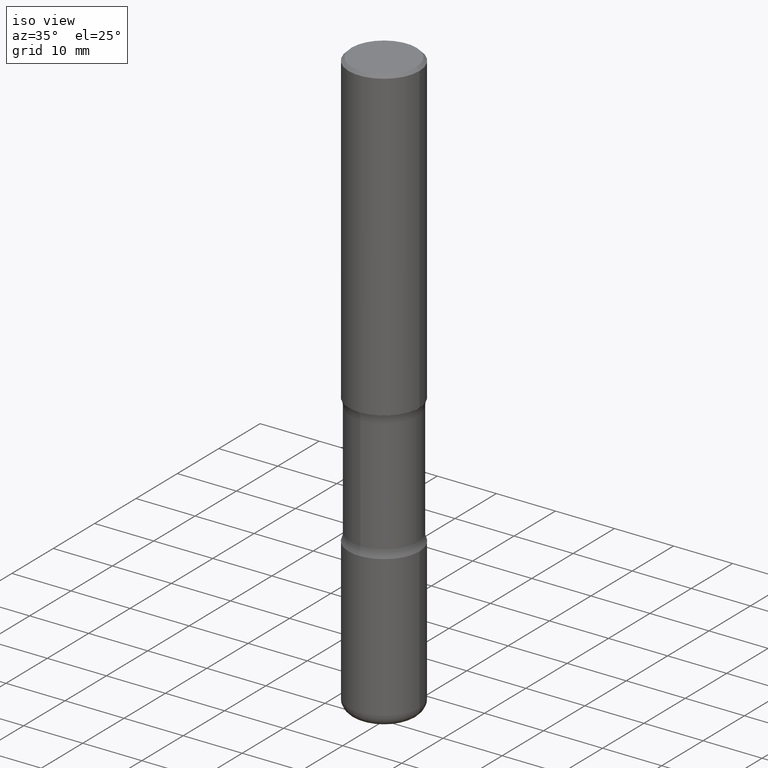
[diagram: clean part render]
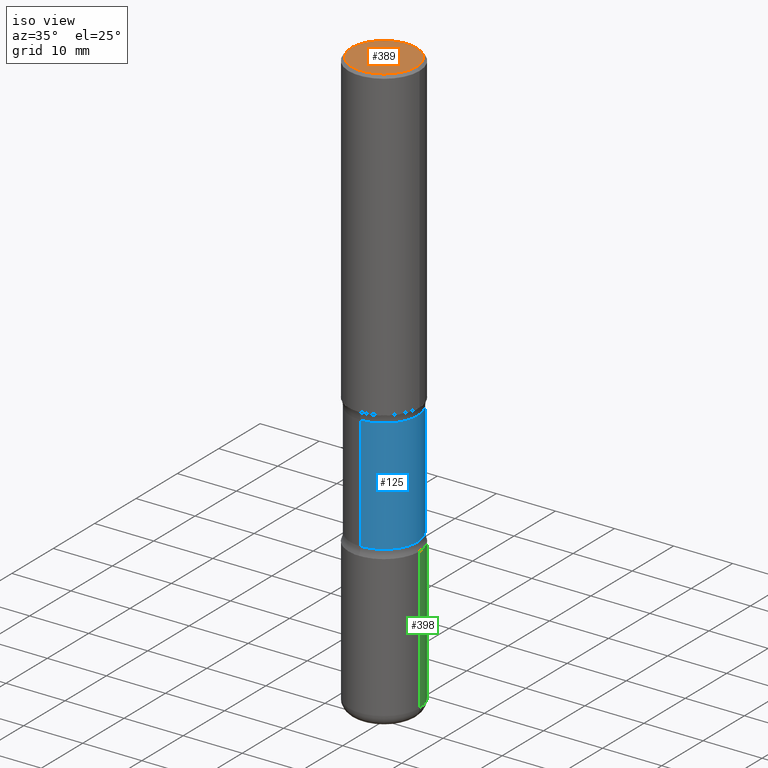
[diagram: same view with three faces highlighted in distinct colors, each labeled with its STEP entity id]
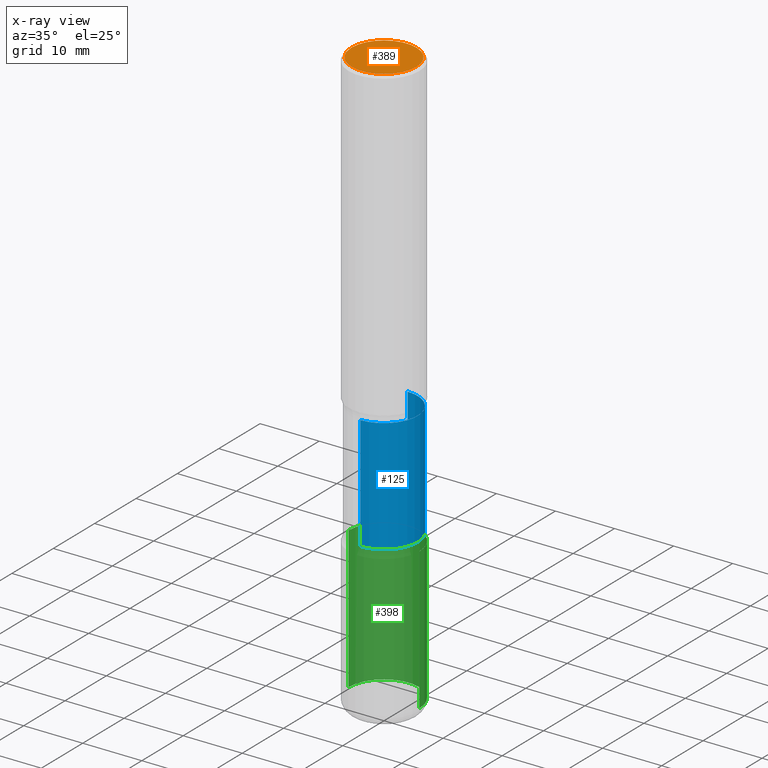
[diagram: x-ray of the same camera — body ghosted, the three highlighted faces saturated]
A machine part, iso view with three faces highlighted in distinct colors.
The next image is the same camera in x-ray (body ghosted, the three faces saturated) — at least one of them is partly hidden behind the body in this view.
Their STEP definitions:

[orange] entity #389 — the highlighted planar face has unit normal (0, -0, -1).
#5 = CIRCLE ( 'NONE', #428, 0.2161999999999998368 ) ;
#17 = CARTESIAN_POINT ( 'NONE',  ( -1.043851414335219820E-46, 1.490343170380447200E-32, 4.268512490100411279E-18 ) ) ;
#20 = EDGE_CURVE ( 'NONE', #200, #287, #5, .T. ) ;
#32 = DIRECTION ( 'NONE',  ( 2.438088387897960049E-29, -3.491481338843145188E-15, -1.000000000000000000 ) ) ;
#39 = DIRECTION ( 'NONE',  ( 1.000000000000000000, -6.982962677686266711E-15, 4.876217060660159599E-29 ) ) ;
#67 = ORIENTED_EDGE ( 'NONE', *, *, #20, .T. ) ;
#78 = CARTESIAN_POINT ( 'NONE',  ( -1.043851414335219820E-46, 1.490343170380447200E-32, 4.268512490100411279E-18 ) ) ;
#98 = CARTESIAN_POINT ( 'NONE',  ( 0.2161999999999998368, -1.586759460484351002E-15, 4.268512490111238857E-18 ) ) ;
#133 = EDGE_LOOP ( 'NONE', ( #508, #67 ) ) ;
#135 = DIRECTION ( 'NONE',  ( -2.445468806185136597E-29, 3.491481338843145583E-15, 1.000000000000000000 ) ) ;
#146 = CIRCLE ( 'NONE', #452, 0.2161999999999998368 ) ;
#151 = CARTESIAN_POINT ( 'NONE',  ( 1.509716530915769534E-15, 0.2161999999999998368, -7.527240092128373149E-16 ) ) ;
#200 = VERTEX_POINT ( 'NONE', #98 ) ;
#216 = AXIS2_PLACEMENT_3D ( 'NONE', #151, #32, #273 ) ;
#227 = EDGE_CURVE ( 'NONE', #287, #200, #146, .T. ) ;
#273 = DIRECTION ( 'NONE',  ( -1.000000000000000000, 6.982962677686265922E-15, -4.876176775795935793E-29 ) ) ;
#287 = VERTEX_POINT ( 'NONE', #409 ) ;
#297 = DIRECTION ( 'NONE',  ( -2.445468806185136597E-29, 3.491481338843145583E-15, 1.000000000000000000 ) ) ;
#356 = PLANE ( 'NONE',  #216 ) ;
#389 = ADVANCED_FACE ( 'NONE', ( #489 ), #356, .F. ) ;
#409 = CARTESIAN_POINT ( 'NONE',  ( -0.2161999999999998368, 1.544631344304201183E-15, 4.268512490089730842E-18 ) ) ;
#428 = AXIS2_PLACEMENT_3D ( 'NONE', #78, #297, #39 ) ;
#452 = AXIS2_PLACEMENT_3D ( 'NONE', #17, #135, #467 ) ;
#467 = DIRECTION ( 'NONE',  ( 1.000000000000000000, -6.982962677686266711E-15, 4.876217060660159599E-29 ) ) ;
#489 = FACE_OUTER_BOUND ( 'NONE', #133, .T. ) ;
#508 = ORIENTED_EDGE ( 'NONE', *, *, #227, .T. ) ;

[blue] entity #125 — the highlighted cylindrical surface (partial cylindrical patch) has radius 5.6998 mm, axis along (0, -0, -1).
#34 = VERTEX_POINT ( 'NONE', #520 ) ;
#45 = EDGE_CURVE ( 'NONE', #462, #73, #560, .T. ) ;
#46 = FACE_OUTER_BOUND ( 'NONE', #215, .T. ) ;
#70 = ORIENTED_EDGE ( 'NONE', *, *, #83, .T. ) ;
#73 = VERTEX_POINT ( 'NONE', #204 ) ;
#75 = AXIS2_PLACEMENT_3D ( 'NONE', #457, #460, #118 ) ;
#83 = EDGE_CURVE ( 'NONE', #462, #34, #506, .T. ) ;
#103 = CARTESIAN_POINT ( 'NONE',  ( -1.579972688886713168E-15, -0.2244000000000099804, -2.860383398826404466 ) ) ;
#115 = DIRECTION ( 'NONE',  ( 6.982962677686265922E-15, 1.000000000000000000, -2.434802133390609421E-15 ) ) ;
#118 = DIRECTION ( 'NONE',  ( 6.982962677686265922E-15, 1.000000000000000000, -3.652203200085913934E-15 ) ) ;
#125 = ADVANCED_FACE ( 'NONE', ( #46 ), #248, .T. ) ;
#126 = CARTESIAN_POINT ( 'NONE',  ( 1.566976824872894642E-15, 0.2243999999999863049, -3.937000000000000721 ) ) ;
#136 = VECTOR ( 'NONE', #513, 39.37007874015748143 ) ;
#158 = VECTOR ( 'NONE', #419, 39.37007874015748143 ) ;
#164 = DIRECTION ( 'NONE',  ( 6.982962677686265922E-15, 1.000000000000000000, -2.434802133390609815E-15 ) ) ;
#204 = CARTESIAN_POINT ( 'NONE',  ( 1.566976824872867821E-15, 0.2243999999999899686, -2.860383398826405799 ) ) ;
#215 = EDGE_LOOP ( 'NONE', ( #70, #278, #296, #320 ) ) ;
#241 = AXIS2_PLACEMENT_3D ( 'NONE', #456, #415, #115 ) ;
#248 = CYLINDRICAL_SURFACE ( 'NONE', #436, 0.2243999999999999329 ) ;
#278 = ORIENTED_EDGE ( 'NONE', *, *, #539, .T. ) ;
#296 = ORIENTED_EDGE ( 'NONE', *, *, #484, .F. ) ;
#320 = ORIENTED_EDGE ( 'NONE', *, *, #45, .F. ) ;
#336 = LINE ( 'NONE', #559, #158 ) ;
#374 = DIRECTION ( 'NONE',  ( 2.525985086076564115E-29, -3.376177443336566513E-15, -1.000000000000000000 ) ) ;
#384 = VERTEX_POINT ( 'NONE', #103 ) ;
#415 = DIRECTION ( 'NONE',  ( 2.525985086076564115E-29, -3.376177443336566513E-15, -1.000000000000000000 ) ) ;
#416 = CARTESIAN_POINT ( 'NONE',  ( 9.710227154047748282E-29, -1.362793696358492956E-14, -3.937000000000000277 ) ) ;
#419 = DIRECTION ( 'NONE',  ( 2.525985086076564115E-29, -3.376177443336566513E-15, -1.000000000000000000 ) ) ;
#436 = AXIS2_PLACEMENT_3D ( 'NONE', #416, #374, #164 ) ;
#456 = CARTESIAN_POINT ( 'NONE',  ( 6.990709676060807691E-29, -9.993088279580958225E-15, -2.860383398826405354 ) ) ;
#457 = CARTESIAN_POINT ( 'NONE',  ( 5.070539682259229331E-29, -7.426630284172150130E-15, -2.100216601173595432 ) ) ;
#460 = DIRECTION ( 'NONE',  ( 2.525985086076564115E-29, -3.376177443336566513E-15, -1.000000000000000000 ) ) ;
#462 = VERTEX_POINT ( 'NONE', #542 ) ;
#484 = EDGE_CURVE ( 'NONE', #73, #384, #557, .T. ) ;
#506 = CIRCLE ( 'NONE', #75, 0.2243999999999999606 ) ;
#513 = DIRECTION ( 'NONE',  ( 2.525985086076564115E-29, -3.376177443336566513E-15, -1.000000000000000000 ) ) ;
#520 = CARTESIAN_POINT ( 'NONE',  ( -1.579972688886734072E-15, -0.2244000000000073713, -2.100216601173594544 ) ) ;
#539 = EDGE_CURVE ( 'NONE', #34, #384, #336, .T. ) ;
#542 = CARTESIAN_POINT ( 'NONE',  ( 1.566976824872848494E-15, 0.2243999999999925499, -2.100216601173596320 ) ) ;
#557 = CIRCLE ( 'NONE', #241, 0.2243999999999999606 ) ;
#559 = CARTESIAN_POINT ( 'NONE',  ( -1.539495750699834052E-15, -0.2244000000000135608, -3.936999999999999389 ) ) ;
#560 = LINE ( 'NONE', #126, #136 ) ;

[green] entity #398 — the highlighted cylindrical surface (partial cylindrical patch) has radius 5.9995 mm, axis along (-0, 0, 1).
#8 = CARTESIAN_POINT ( 'NONE',  ( 0.2362000000000003264, -1.512055823412800345E-14, -3.858299999999998509 ) ) ;
#27 = ORIENTED_EDGE ( 'NONE', *, *, #220, .T. ) ;
#49 = VECTOR ( 'NONE', #171, 39.37007874015748143 ) ;
#57 = CIRCLE ( 'NONE', #168, 0.2362000000000002153 ) ;
#66 = VERTEX_POINT ( 'NONE', #130 ) ;
#80 = CARTESIAN_POINT ( 'NONE',  ( -0.2362000000000003264, -1.179288050779314737E-14, -3.858299999999998509 ) ) ;
#86 = DIRECTION ( 'NONE',  ( -2.445468806185136597E-29, 3.491481338843145583E-15, 1.000000000000000000 ) ) ;
#95 = EDGE_LOOP ( 'NONE', ( #491, #27, #329, #410 ) ) ;
#104 = CARTESIAN_POINT ( 'NONE',  ( 0.000000000000000000, 0.000000000000000000, 0.000000000000000000 ) ) ;
#114 = VERTEX_POINT ( 'NONE', #80 ) ;
#130 = CARTESIAN_POINT ( 'NONE',  ( -0.2362000000000001321, -1.014333014925670672E-14, -2.913400000000000212 ) ) ;
#147 = AXIS2_PLACEMENT_3D ( 'NONE', #104, #319, #442 ) ;
#160 = DIRECTION ( 'NONE',  ( 1.000000000000000000, -6.982962677686266711E-15, 0.000000000000000000 ) ) ;
#168 = AXIS2_PLACEMENT_3D ( 'NONE', #209, #86, #160 ) ;
#171 = DIRECTION ( 'NONE',  ( -2.445468806185136877E-29, 3.491481338843145188E-15, 1.000000000000000000 ) ) ;
#193 = DIRECTION ( 'NONE',  ( -2.445468806185136597E-29, 3.491481338843145583E-15, 1.000000000000000000 ) ) ;
#209 = CARTESIAN_POINT ( 'NONE',  ( 9.435352294904109900E-29, -1.347118244965850534E-14, -3.858299999999998509 ) ) ;
#220 = EDGE_CURVE ( 'NONE', #114, #66, #312, .T. ) ;
#222 = CARTESIAN_POINT ( 'NONE',  ( -0.2362000000000001598, 1.678301941865357775E-15, -1.161852468318209598E-29 ) ) ;
#223 = CARTESIAN_POINT ( 'NONE',  ( 7.124628819939777829E-29, -1.017208173258562247E-14, -2.913400000000000212 ) ) ;
#224 = VERTEX_POINT ( 'NONE', #399 ) ;
#249 = CARTESIAN_POINT ( 'NONE',  ( 0.2362000000000001598, -1.649375784469497314E-15, 1.151752954443000929E-29 ) ) ;
#275 = VERTEX_POINT ( 'NONE', #8 ) ;
#280 = AXIS2_PLACEMENT_3D ( 'NONE', #223, #193, #545 ) ;
#307 = CIRCLE ( 'NONE', #280, 0.2362000000000001321 ) ;
#312 = LINE ( 'NONE', #222, #388 ) ;
#317 = CYLINDRICAL_SURFACE ( 'NONE', #147, 0.2362000000000001598 ) ;
#319 = DIRECTION ( 'NONE',  ( -2.445468806185136597E-29, 3.491481338843145583E-15, 1.000000000000000000 ) ) ;
#329 = ORIENTED_EDGE ( 'NONE', *, *, #380, .F. ) ;
#380 = EDGE_CURVE ( 'NONE', #224, #66, #307, .T. ) ;
#388 = VECTOR ( 'NONE', #524, 39.37007874015748143 ) ;
#398 = ADVANCED_FACE ( 'NONE', ( #536 ), #317, .T. ) ;
#399 = CARTESIAN_POINT ( 'NONE',  ( 0.2362000000000001321, -1.182145751705511899E-14, -2.913400000000000212 ) ) ;
#410 = ORIENTED_EDGE ( 'NONE', *, *, #531, .F. ) ;
#442 = DIRECTION ( 'NONE',  ( 1.000000000000000000, -6.982962677686266711E-15, 4.876176775795936353E-29 ) ) ;
#465 = LINE ( 'NONE', #249, #49 ) ;
#488 = EDGE_CURVE ( 'NONE', #275, #114, #57, .T. ) ;
#491 = ORIENTED_EDGE ( 'NONE', *, *, #488, .T. ) ;
#524 = DIRECTION ( 'NONE',  ( -2.445468806185136877E-29, 3.491481338843145188E-15, 1.000000000000000000 ) ) ;
#531 = EDGE_CURVE ( 'NONE', #275, #224, #465, .T. ) ;
#536 = FACE_OUTER_BOUND ( 'NONE', #95, .T. ) ;
#545 = DIRECTION ( 'NONE',  ( 1.000000000000000000, -6.982962677686269077E-15, 0.000000000000000000 ) ) ;